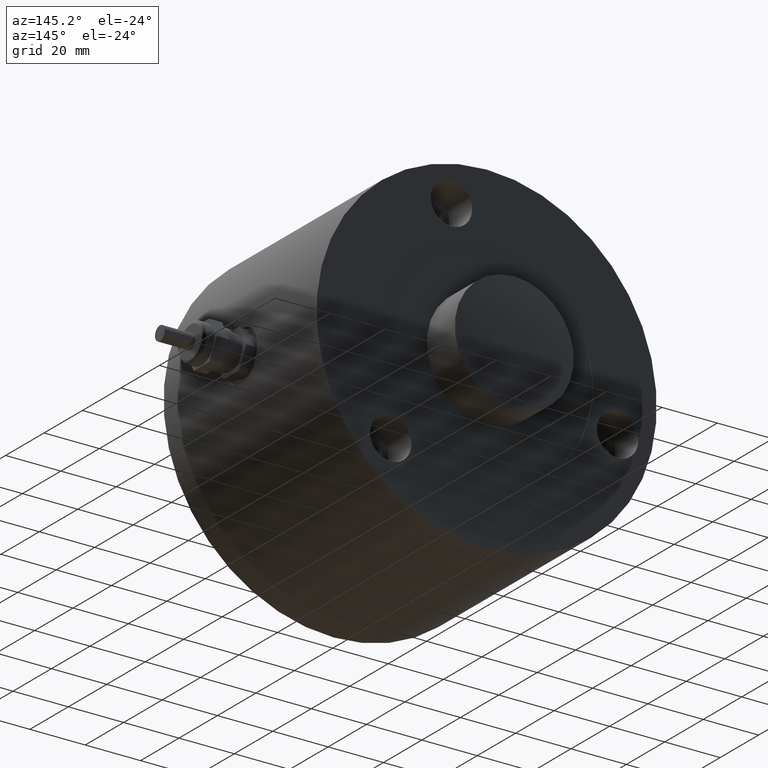
[diagram: clean part render]
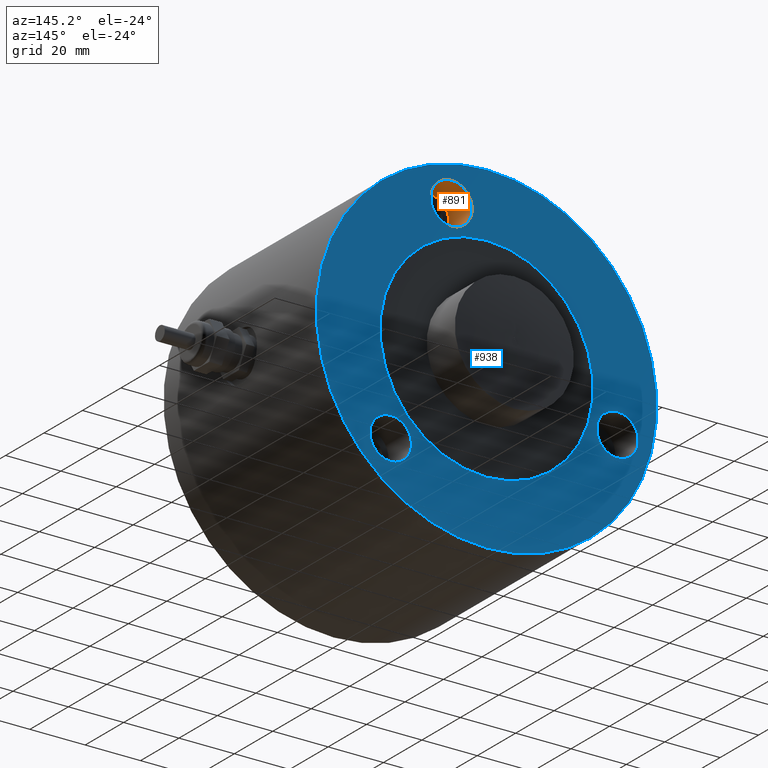
[diagram: same view with the hole feature highlighted: cylindrical wall and planar end face, labeled with their STEP entity ids]
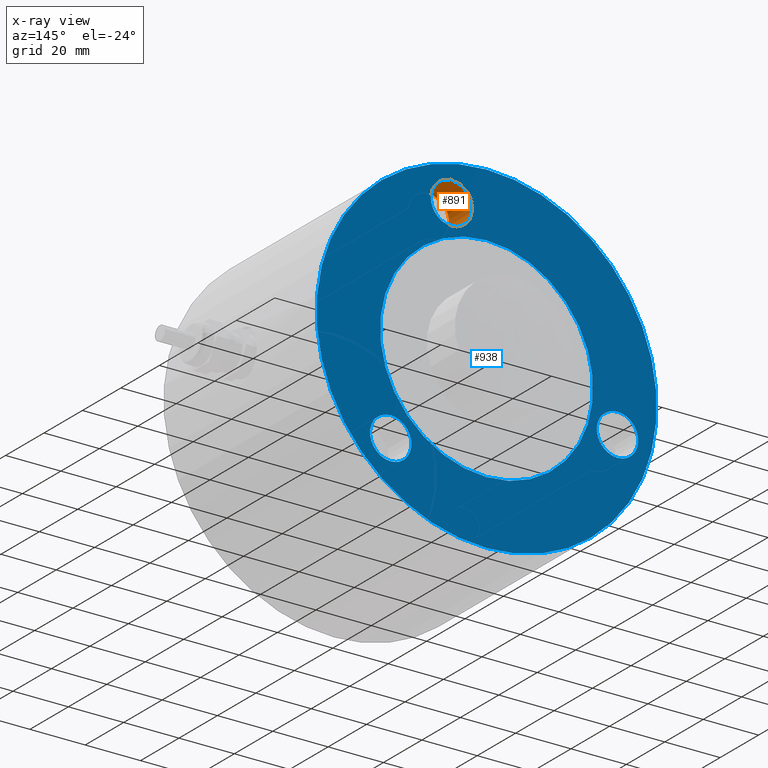
[diagram: x-ray of the same camera — body ghosted, the hole faces saturated]
A machine part, auxiliary view. The highlighted faces form one hole feature of diameter 15 mm: the cylindrical wall (entity #891, orange) and its adjacent planar end face (entity #938, blue) — they share a circular edge in the B-rep.
The next image is the same camera in x-ray (body ghosted, the hole faces saturated) — the bore reads through the body.
Wall:
#75=FACE_OUTER_BOUND('',#125,.T.);
#125=EDGE_LOOP('',(#612,#613,#614,#615,#616,#617));
#191=LINE('',#1431,#243);
#243=VECTOR('',#1095,7.5);
#298=CIRCLE('',#959,7.5);
#299=CIRCLE('',#960,7.5);
#300=CIRCLE('',#961,7.5);
#301=CIRCLE('',#962,7.5);
#375=VERTEX_POINT('',#1426);
#376=VERTEX_POINT('',#1427);
#377=VERTEX_POINT('',#1430);
#378=VERTEX_POINT('',#1432);
#476=EDGE_CURVE('',#375,#376,#298,.T.);
#477=EDGE_CURVE('',#376,#375,#299,.T.);
#478=EDGE_CURVE('',#376,#377,#191,.T.);
#479=EDGE_CURVE('',#377,#378,#300,.T.);
#480=EDGE_CURVE('',#378,#377,#301,.T.);
#612=ORIENTED_EDGE('',*,*,#476,.F.);
#613=ORIENTED_EDGE('',*,*,#477,.F.);
#614=ORIENTED_EDGE('',*,*,#478,.T.);
#615=ORIENTED_EDGE('',*,*,#479,.T.);
#616=ORIENTED_EDGE('',*,*,#480,.T.);
#617=ORIENTED_EDGE('',*,*,#478,.F.);
#875=CYLINDRICAL_SURFACE('',#958,7.5);
#891=ADVANCED_FACE('',(#75),#875,.F.);
#958=AXIS2_PLACEMENT_3D('',#1425,#1089,#1090);
#959=AXIS2_PLACEMENT_3D('',#1428,#1091,#1092);
#960=AXIS2_PLACEMENT_3D('',#1429,#1093,#1094);
#961=AXIS2_PLACEMENT_3D('',#1433,#1096,#1097);
#962=AXIS2_PLACEMENT_3D('',#1434,#1098,#1099);
#1089=DIRECTION('center_axis',(0.,1.,0.));
#1090=DIRECTION('ref_axis',(0.,0.,1.));
#1091=DIRECTION('center_axis',(0.,1.,0.));
#1092=DIRECTION('ref_axis',(0.,0.,1.));
#1093=DIRECTION('center_axis',(0.,1.,0.));
#1094=DIRECTION('ref_axis',(0.,0.,1.));
#1095=DIRECTION('',(0.,1.,0.));
#1096=DIRECTION('center_axis',(0.,1.,0.));
#1097=DIRECTION('ref_axis',(0.,0.,1.));
#1098=DIRECTION('center_axis',(0.,1.,0.));
#1099=DIRECTION('ref_axis',(0.,0.,1.));
#1425=CARTESIAN_POINT('Origin',(12.6821332100254,68.,47.3303654881648));
#1426=CARTESIAN_POINT('',(12.6821332100254,68.,54.8303654881648));
#1427=CARTESIAN_POINT('',(12.6821332100254,68.,39.8303654881648));
#1428=CARTESIAN_POINT('Origin',(12.6821332100254,68.,47.3303654881648));
#1429=CARTESIAN_POINT('Origin',(12.6821332100254,68.,47.3303654881648));
#1430=CARTESIAN_POINT('',(12.6821332100254,80.,39.8303654881648));
#1431=CARTESIAN_POINT('',(12.6821332100254,68.,39.8303654881648));
#1432=CARTESIAN_POINT('',(12.6821332100254,80.,54.8303654881648));
#1433=CARTESIAN_POINT('Origin',(12.6821332100254,80.,47.3303654881648));
#1434=CARTESIAN_POINT('Origin',(12.6821332100254,80.,47.3303654881648));
End face:
#42=PLANE('',#1075);
#62=FACE_BOUND('',#186,.T.);
#63=FACE_BOUND('',#187,.T.);
#64=FACE_BOUND('',#188,.T.);
#65=FACE_BOUND('',#189,.T.);
#122=FACE_OUTER_BOUND('',#185,.T.);
#185=EDGE_LOOP('',(#864,#865));
#186=EDGE_LOOP('',(#866,#867));
#187=EDGE_LOOP('',(#868,#869));
#188=EDGE_LOOP('',(#870,#871));
#189=EDGE_LOOP('',(#872,#873));
#296=CIRCLE('',#956,61.5);
#297=CIRCLE('',#957,61.5);
#300=CIRCLE('',#961,7.5);
#301=CIRCLE('',#962,7.5);
#304=CIRCLE('',#966,7.5);
#305=CIRCLE('',#967,7.5);
#308=CIRCLE('',#971,7.5);
#309=CIRCLE('',#972,7.5);
#310=CIRCLE('',#974,38.5);
#311=CIRCLE('',#975,38.5);
#371=VERTEX_POINT('',#1382);
#372=VERTEX_POINT('',#1384);
#377=VERTEX_POINT('',#1430);
#378=VERTEX_POINT('',#1432);
#381=VERTEX_POINT('',#1440);
#382=VERTEX_POINT('',#1442);
#385=VERTEX_POINT('',#1450);
#386=VERTEX_POINT('',#1452);
#387=VERTEX_POINT('',#1456);
#388=VERTEX_POINT('',#1457);
#472=EDGE_CURVE('',#371,#372,#296,.T.);
#473=EDGE_CURVE('',#372,#371,#297,.T.);
#479=EDGE_CURVE('',#377,#378,#300,.T.);
#480=EDGE_CURVE('',#378,#377,#301,.T.);
#484=EDGE_CURVE('',#381,#382,#304,.T.);
#485=EDGE_CURVE('',#382,#381,#305,.T.);
#489=EDGE_CURVE('',#385,#386,#308,.T.);
#490=EDGE_CURVE('',#386,#385,#309,.T.);
#491=EDGE_CURVE('',#387,#388,#310,.T.);
#492=EDGE_CURVE('',#388,#387,#311,.T.);
#864=ORIENTED_EDGE('',*,*,#473,.F.);
#865=ORIENTED_EDGE('',*,*,#472,.F.);
#866=ORIENTED_EDGE('',*,*,#480,.F.);
#867=ORIENTED_EDGE('',*,*,#479,.F.);
#868=ORIENTED_EDGE('',*,*,#485,.F.);
#869=ORIENTED_EDGE('',*,*,#484,.F.);
#870=ORIENTED_EDGE('',*,*,#490,.F.);
#871=ORIENTED_EDGE('',*,*,#489,.F.);
#872=ORIENTED_EDGE('',*,*,#491,.T.);
#873=ORIENTED_EDGE('',*,*,#492,.T.);
#938=ADVANCED_FACE('',(#122,#62,#63,#64,#65),#42,.T.);
#956=AXIS2_PLACEMENT_3D('',#1385,#1085,#1086);
#957=AXIS2_PLACEMENT_3D('',#1386,#1087,#1088);
#961=AXIS2_PLACEMENT_3D('',#1433,#1096,#1097);
#962=AXIS2_PLACEMENT_3D('',#1434,#1098,#1099);
#966=AXIS2_PLACEMENT_3D('',#1443,#1107,#1108);
#967=AXIS2_PLACEMENT_3D('',#1444,#1109,#1110);
#971=AXIS2_PLACEMENT_3D('',#1453,#1118,#1119);
#972=AXIS2_PLACEMENT_3D('',#1454,#1120,#1121);
#974=AXIS2_PLACEMENT_3D('',#1458,#1124,#1125);
#975=AXIS2_PLACEMENT_3D('',#1459,#1126,#1127);
#1075=AXIS2_PLACEMENT_3D('',#1786,#1374,#1375);
#1085=DIRECTION('center_axis',(0.,-1.,0.));
#1086=DIRECTION('ref_axis',(0.,0.,-1.));
#1087=DIRECTION('center_axis',(0.,-1.,0.));
#1088=DIRECTION('ref_axis',(0.,0.,-1.));
#1096=DIRECTION('center_axis',(0.,1.,0.));
#1097=DIRECTION('ref_axis',(0.,0.,1.));
#1098=DIRECTION('center_axis',(0.,1.,0.));
#1099=DIRECTION('ref_axis',(0.,0.,1.));
#1107=DIRECTION('center_axis',(0.,1.,0.));
#1108=DIRECTION('ref_axis',(0.,0.,1.));
#1109=DIRECTION('center_axis',(0.,1.,0.));
#1110=DIRECTION('ref_axis',(0.,0.,1.));
#1118=DIRECTION('center_axis',(0.,1.,0.));
#1119=DIRECTION('ref_axis',(0.,0.,1.));
#1120=DIRECTION('center_axis',(0.,1.,0.));
#1121=DIRECTION('ref_axis',(0.,0.,1.));
#1124=DIRECTION('center_axis',(0.,-1.,0.));
#1125=DIRECTION('ref_axis',(0.,0.,-1.));
#1126=DIRECTION('center_axis',(0.,-1.,0.));
#1127=DIRECTION('ref_axis',(0.,0.,-1.));
#1374=DIRECTION('center_axis',(0.,1.,0.));
#1375=DIRECTION('ref_axis',(0.,0.,1.));
#1382=CARTESIAN_POINT('',(-7.53157781475622E-15,80.,61.5));
#1384=CARTESIAN_POINT('',(0.,80.,-61.5));
#1385=CARTESIAN_POINT('Origin',(0.,80.,0.));
#1386=CARTESIAN_POINT('Origin',(0.,80.,0.));
#1430=CARTESIAN_POINT('',(12.6821332100254,80.,39.8303654881648));
#1432=CARTESIAN_POINT('',(12.6821332100254,80.,54.8303654881648));
#1433=CARTESIAN_POINT('Origin',(12.6821332100254,80.,47.3303654881648));
#1434=CARTESIAN_POINT('Origin',(12.6821332100254,80.,47.3303654881648));
#1440=CARTESIAN_POINT('',(34.6482322781408,80.,-42.1482322781409));
#1442=CARTESIAN_POINT('',(34.6482322781408,80.,-27.1482322781409));
#1443=CARTESIAN_POINT('Origin',(34.6482322781408,80.,-34.6482322781409));
#1444=CARTESIAN_POINT('Origin',(34.6482322781408,80.,-34.6482322781409));
#1450=CARTESIAN_POINT('',(-47.3303654881639,80.,-20.1821332100216));
#1452=CARTESIAN_POINT('',(-47.3303654881639,80.,-5.18213321002158));
#1453=CARTESIAN_POINT('Origin',(-47.3303654881639,80.,-12.6821332100216));
#1454=CARTESIAN_POINT('Origin',(-47.3303654881639,80.,-12.6821332100216));
#1456=CARTESIAN_POINT('',(0.,80.,-38.5));
#1457=CARTESIAN_POINT('',(-4.71489017671731E-15,80.,38.5));
#1458=CARTESIAN_POINT('Origin',(0.,80.,0.));
#1459=CARTESIAN_POINT('Origin',(0.,80.,0.));
#1786=CARTESIAN_POINT('Origin',(61.5,80.,0.));